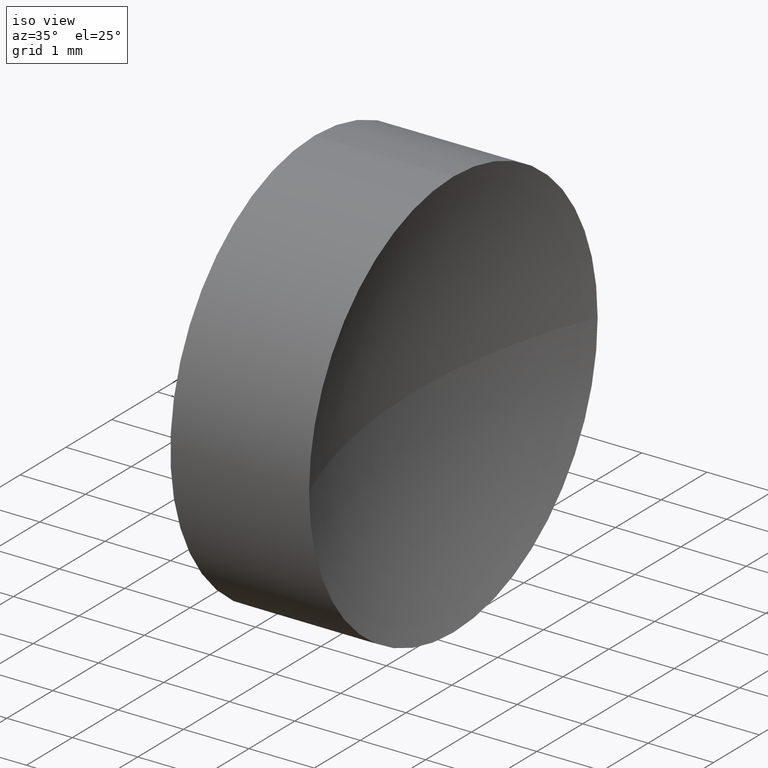
[diagram: clean part render]
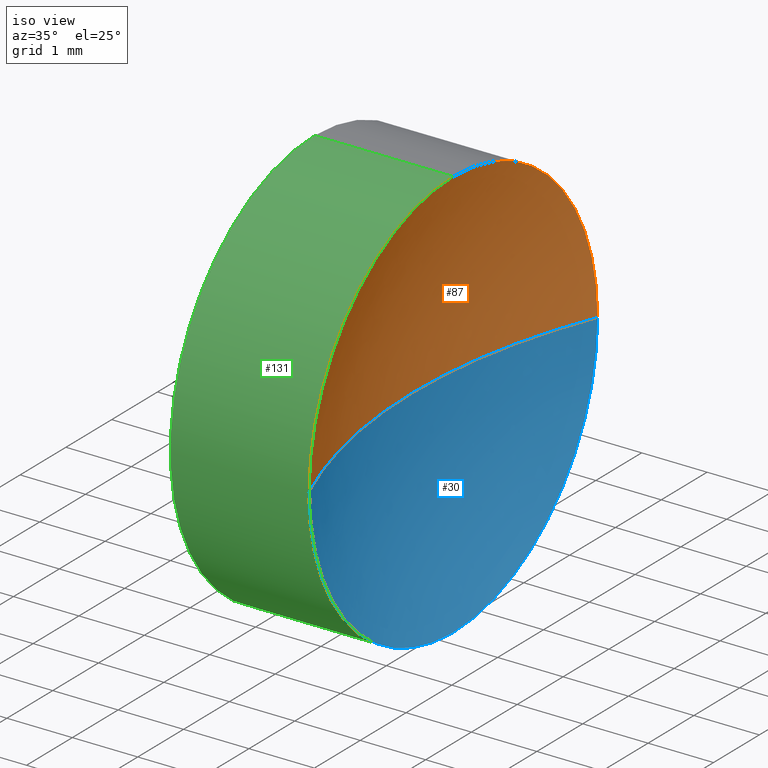
[diagram: same view with three faces highlighted in distinct colors, each labeled with its STEP entity id]
A machine part, iso view with three faces highlighted in distinct colors.
Their STEP definitions:

[orange] entity #87 — the highlighted spherical surface has radius 8.312 mm.
#2 = VERTEX_POINT ( 'NONE', #5 ) ;
#5 = CARTESIAN_POINT ( 'NONE',  ( 23.67218982478000600, 13.04452057459747900, 0.0000000000000000000 ) ) ;
#7 = DIRECTION ( 'NONE',  ( 0.0000000000000000000, -1.000000000000000000, -1.224646799147353200E-016 ) ) ;
#15 = AXIS2_PLACEMENT_3D ( 'NONE', #108, #139, #63 ) ;
#24 = AXIS2_PLACEMENT_3D ( 'NONE', #169, #106, #64 ) ;
#26 = AXIS2_PLACEMENT_3D ( 'NONE', #105, #102, #58 ) ;
#31 = CARTESIAN_POINT ( 'NONE',  ( 24.29218947520227800, 9.894520574597478900, 0.0000000000000000000 ) ) ;
#36 = CARTESIAN_POINT ( 'NONE',  ( 24.29218947520227800, 13.04452057459747900, 3.150000000000001700 ) ) ;
#49 = FACE_OUTER_BOUND ( 'NONE', #80, .T. ) ;
#54 = CIRCLE ( 'NONE', #94, 8.312020466063032100 ) ;
#58 = DIRECTION ( 'NONE',  ( 0.0000000000000000000, -1.000000000000000000, 0.0000000000000000000 ) ) ;
#60 = VERTEX_POINT ( 'NONE', #31 ) ;
#63 = DIRECTION ( 'NONE',  ( 0.0000000000000000000, 0.0000000000000000000, 1.000000000000000000 ) ) ;
#64 = DIRECTION ( 'NONE',  ( -1.000000000000000000, 0.0000000000000000000, 0.0000000000000000000 ) ) ;
#68 = CIRCLE ( 'NONE', #15, 3.150000000000001700 ) ;
#75 = CARTESIAN_POINT ( 'NONE',  ( 24.29218947520227800, 13.04452057459747900, 0.0000000000000000000 ) ) ;
#80 = EDGE_LOOP ( 'NONE', ( #111, #127, #186, #157 ) ) ;
#87 = ADVANCED_FACE ( 'NONE', ( #49 ), #122, .F. ) ;
#91 = CIRCLE ( 'NONE', #184, 3.150000000000001700 ) ;
#94 = AXIS2_PLACEMENT_3D ( 'NONE', #98, #180, #7 ) ;
#98 = CARTESIAN_POINT ( 'NONE',  ( 31.98421029084303800, 13.04452057459747900, 0.0000000000000000000 ) ) ;
#100 = EDGE_CURVE ( 'NONE', #140, #124, #68, .T. ) ;
#102 = DIRECTION ( 'NONE',  ( 0.0000000000000000000, 0.0000000000000000000, 1.000000000000000000 ) ) ;
#105 = CARTESIAN_POINT ( 'NONE',  ( 31.98421029084303800, 13.04452057459747900, 0.0000000000000000000 ) ) ;
#106 = DIRECTION ( 'NONE',  ( 0.0000000000000000000, 0.0000000000000000000, -1.000000000000000000 ) ) ;
#107 = DIRECTION ( 'NONE',  ( 0.0000000000000000000, 0.0000000000000000000, 1.000000000000000000 ) ) ;
#108 = CARTESIAN_POINT ( 'NONE',  ( 24.29218947520227800, 13.04452057459747900, 0.0000000000000000000 ) ) ;
#111 = ORIENTED_EDGE ( 'NONE', *, *, #179, .F. ) ;
#114 = CIRCLE ( 'NONE', #24, 8.312020466063032100 ) ;
#120 = CARTESIAN_POINT ( 'NONE',  ( 24.29218947520227800, 16.19452057459747600, 3.857637417314163200E-016 ) ) ;
#121 = DIRECTION ( 'NONE',  ( -1.000000000000000000, -0.0000000000000000000, -0.0000000000000000000 ) ) ;
#122 = SPHERICAL_SURFACE ( 'NONE', #26, 8.312020466063032100 ) ;
#124 = VERTEX_POINT ( 'NONE', #120 ) ;
#127 = ORIENTED_EDGE ( 'NONE', *, *, #100, .F. ) ;
#129 = EDGE_CURVE ( 'NONE', #60, #140, #91, .T. ) ;
#139 = DIRECTION ( 'NONE',  ( -1.000000000000000000, -0.0000000000000000000, -0.0000000000000000000 ) ) ;
#140 = VERTEX_POINT ( 'NONE', #36 ) ;
#155 = EDGE_CURVE ( 'NONE', #60, #2, #114, .T. ) ;
#157 = ORIENTED_EDGE ( 'NONE', *, *, #155, .T. ) ;
#169 = CARTESIAN_POINT ( 'NONE',  ( 31.98421029084303800, 13.04452057459747900, 0.0000000000000000000 ) ) ;
#179 = EDGE_CURVE ( 'NONE', #124, #2, #54, .T. ) ;
#180 = DIRECTION ( 'NONE',  ( 0.0000000000000000000, -1.224646799147353200E-016, 1.000000000000000000 ) ) ;
#184 = AXIS2_PLACEMENT_3D ( 'NONE', #75, #121, #107 ) ;
#186 = ORIENTED_EDGE ( 'NONE', *, *, #129, .F. ) ;

[blue] entity #30 — the highlighted spherical surface has radius 8.312 mm.
#2 = VERTEX_POINT ( 'NONE', #5 ) ;
#5 = CARTESIAN_POINT ( 'NONE',  ( 23.67218982478000600, 13.04452057459747900, 0.0000000000000000000 ) ) ;
#7 = DIRECTION ( 'NONE',  ( 0.0000000000000000000, -1.000000000000000000, -1.224646799147353200E-016 ) ) ;
#10 = SPHERICAL_SURFACE ( 'NONE', #28, 8.312020466063032100 ) ;
#14 = EDGE_LOOP ( 'NONE', ( #41, #159, #86, #55 ) ) ;
#19 = DIRECTION ( 'NONE',  ( 0.0000000000000000000, -1.000000000000000000, 0.0000000000000000000 ) ) ;
#23 = DIRECTION ( 'NONE',  ( 0.0000000000000000000, 0.0000000000000000000, 1.000000000000000000 ) ) ;
#24 = AXIS2_PLACEMENT_3D ( 'NONE', #169, #106, #64 ) ;
#28 = AXIS2_PLACEMENT_3D ( 'NONE', #103, #85, #19 ) ;
#30 = ADVANCED_FACE ( 'NONE', ( #118 ), #10, .F. ) ;
#31 = CARTESIAN_POINT ( 'NONE',  ( 24.29218947520227800, 9.894520574597478900, 0.0000000000000000000 ) ) ;
#35 = CIRCLE ( 'NONE', #167, 3.150000000000001700 ) ;
#37 = VERTEX_POINT ( 'NONE', #88 ) ;
#39 = CARTESIAN_POINT ( 'NONE',  ( 24.29218947520227800, 13.04452057459747900, 0.0000000000000000000 ) ) ;
#41 = ORIENTED_EDGE ( 'NONE', *, *, #175, .F. ) ;
#54 = CIRCLE ( 'NONE', #94, 8.312020466063032100 ) ;
#55 = ORIENTED_EDGE ( 'NONE', *, *, #116, .F. ) ;
#60 = VERTEX_POINT ( 'NONE', #31 ) ;
#64 = DIRECTION ( 'NONE',  ( -1.000000000000000000, 0.0000000000000000000, 0.0000000000000000000 ) ) ;
#69 = AXIS2_PLACEMENT_3D ( 'NONE', #152, #172, #77 ) ;
#77 = DIRECTION ( 'NONE',  ( 0.0000000000000000000, 0.0000000000000000000, 1.000000000000000000 ) ) ;
#85 = DIRECTION ( 'NONE',  ( 0.0000000000000000000, 0.0000000000000000000, 1.000000000000000000 ) ) ;
#86 = ORIENTED_EDGE ( 'NONE', *, *, #155, .F. ) ;
#88 = CARTESIAN_POINT ( 'NONE',  ( 24.29218947520227800, 13.04452057459747900, -3.150000000000001700 ) ) ;
#93 = DIRECTION ( 'NONE',  ( -1.000000000000000000, -0.0000000000000000000, -0.0000000000000000000 ) ) ;
#94 = AXIS2_PLACEMENT_3D ( 'NONE', #98, #180, #7 ) ;
#98 = CARTESIAN_POINT ( 'NONE',  ( 31.98421029084303800, 13.04452057459747900, 0.0000000000000000000 ) ) ;
#103 = CARTESIAN_POINT ( 'NONE',  ( 31.98421029084303800, 13.04452057459747900, 0.0000000000000000000 ) ) ;
#106 = DIRECTION ( 'NONE',  ( 0.0000000000000000000, 0.0000000000000000000, -1.000000000000000000 ) ) ;
#114 = CIRCLE ( 'NONE', #24, 8.312020466063032100 ) ;
#116 = EDGE_CURVE ( 'NONE', #37, #60, #158, .T. ) ;
#118 = FACE_OUTER_BOUND ( 'NONE', #14, .T. ) ;
#120 = CARTESIAN_POINT ( 'NONE',  ( 24.29218947520227800, 16.19452057459747600, 3.857637417314163200E-016 ) ) ;
#124 = VERTEX_POINT ( 'NONE', #120 ) ;
#152 = CARTESIAN_POINT ( 'NONE',  ( 24.29218947520227800, 13.04452057459747900, 0.0000000000000000000 ) ) ;
#155 = EDGE_CURVE ( 'NONE', #60, #2, #114, .T. ) ;
#158 = CIRCLE ( 'NONE', #69, 3.150000000000001700 ) ;
#159 = ORIENTED_EDGE ( 'NONE', *, *, #179, .T. ) ;
#167 = AXIS2_PLACEMENT_3D ( 'NONE', #39, #93, #23 ) ;
#169 = CARTESIAN_POINT ( 'NONE',  ( 31.98421029084303800, 13.04452057459747900, 0.0000000000000000000 ) ) ;
#172 = DIRECTION ( 'NONE',  ( -1.000000000000000000, -0.0000000000000000000, -0.0000000000000000000 ) ) ;
#175 = EDGE_CURVE ( 'NONE', #124, #37, #35, .T. ) ;
#179 = EDGE_CURVE ( 'NONE', #124, #2, #54, .T. ) ;
#180 = DIRECTION ( 'NONE',  ( 0.0000000000000000000, -1.224646799147353200E-016, 1.000000000000000000 ) ) ;

[green] entity #131 — the highlighted cylindrical surface (partial cylindrical patch) has radius 3.15 mm, axis along (-1, -0, -0).
#1 = VECTOR ( 'NONE', #32, 1000.000000000000000 ) ;
#8 = FACE_OUTER_BOUND ( 'NONE', #66, .T. ) ;
#18 = VERTEX_POINT ( 'NONE', #71 ) ;
#20 = CIRCLE ( 'NONE', #145, 3.150000000000001700 ) ;
#21 = CARTESIAN_POINT ( 'NONE',  ( 22.17218947520228100, 13.04452057459747900, 3.150000000000001700 ) ) ;
#29 = DIRECTION ( 'NONE',  ( 0.0000000000000000000, 0.0000000000000000000, 1.000000000000000000 ) ) ;
#31 = CARTESIAN_POINT ( 'NONE',  ( 24.29218947520227800, 9.894520574597478900, 0.0000000000000000000 ) ) ;
#32 = DIRECTION ( 'NONE',  ( -1.000000000000000000, -0.0000000000000000000, -0.0000000000000000000 ) ) ;
#36 = CARTESIAN_POINT ( 'NONE',  ( 24.29218947520227800, 13.04452057459747900, 3.150000000000001700 ) ) ;
#37 = VERTEX_POINT ( 'NONE', #88 ) ;
#40 = DIRECTION ( 'NONE',  ( -1.000000000000000000, -0.0000000000000000000, -0.0000000000000000000 ) ) ;
#44 = DIRECTION ( 'NONE',  ( -1.000000000000000000, -0.0000000000000000000, -0.0000000000000000000 ) ) ;
#46 = CARTESIAN_POINT ( 'NONE',  ( 21.22493055706841100, 13.04452057459747900, 0.0000000000000000000 ) ) ;
#47 = CARTESIAN_POINT ( 'NONE',  ( 21.22493055706841100, 13.04452057459747900, -3.150000000000001700 ) ) ;
#57 = ORIENTED_EDGE ( 'NONE', *, *, #129, .T. ) ;
#60 = VERTEX_POINT ( 'NONE', #31 ) ;
#62 = ORIENTED_EDGE ( 'NONE', *, *, #67, .F. ) ;
#66 = EDGE_LOOP ( 'NONE', ( #62, #171, #57, #97, #115 ) ) ;
#67 = EDGE_CURVE ( 'NONE', #37, #18, #156, .T. ) ;
#69 = AXIS2_PLACEMENT_3D ( 'NONE', #152, #172, #77 ) ;
#71 = CARTESIAN_POINT ( 'NONE',  ( 22.17218947520228100, 13.04452057459747900, -3.150000000000001700 ) ) ;
#75 = CARTESIAN_POINT ( 'NONE',  ( 24.29218947520227800, 13.04452057459747900, 0.0000000000000000000 ) ) ;
#77 = DIRECTION ( 'NONE',  ( 0.0000000000000000000, 0.0000000000000000000, 1.000000000000000000 ) ) ;
#84 = VERTEX_POINT ( 'NONE', #21 ) ;
#88 = CARTESIAN_POINT ( 'NONE',  ( 24.29218947520227800, 13.04452057459747900, -3.150000000000001700 ) ) ;
#89 = EDGE_CURVE ( 'NONE', #18, #84, #20, .T. ) ;
#91 = CIRCLE ( 'NONE', #184, 3.150000000000001700 ) ;
#97 = ORIENTED_EDGE ( 'NONE', *, *, #143, .T. ) ;
#107 = DIRECTION ( 'NONE',  ( 0.0000000000000000000, 0.0000000000000000000, 1.000000000000000000 ) ) ;
#115 = ORIENTED_EDGE ( 'NONE', *, *, #89, .F. ) ;
#116 = EDGE_CURVE ( 'NONE', #37, #60, #158, .T. ) ;
#121 = DIRECTION ( 'NONE',  ( -1.000000000000000000, -0.0000000000000000000, -0.0000000000000000000 ) ) ;
#126 = AXIS2_PLACEMENT_3D ( 'NONE', #46, #178, #150 ) ;
#128 = CARTESIAN_POINT ( 'NONE',  ( 22.17218947520228100, 13.04452057459747900, 0.0000000000000000000 ) ) ;
#129 = EDGE_CURVE ( 'NONE', #60, #140, #91, .T. ) ;
#131 = ADVANCED_FACE ( 'NONE', ( #8 ), #166, .T. ) ;
#140 = VERTEX_POINT ( 'NONE', #36 ) ;
#141 = VECTOR ( 'NONE', #40, 1000.000000000000000 ) ;
#143 = EDGE_CURVE ( 'NONE', #140, #84, #183, .T. ) ;
#145 = AXIS2_PLACEMENT_3D ( 'NONE', #128, #44, #29 ) ;
#150 = DIRECTION ( 'NONE',  ( 0.0000000000000000000, 0.0000000000000000000, 1.000000000000000000 ) ) ;
#152 = CARTESIAN_POINT ( 'NONE',  ( 24.29218947520227800, 13.04452057459747900, 0.0000000000000000000 ) ) ;
#156 = LINE ( 'NONE', #47, #1 ) ;
#158 = CIRCLE ( 'NONE', #69, 3.150000000000001700 ) ;
#166 = CYLINDRICAL_SURFACE ( 'NONE', #126, 3.150000000000001700 ) ;
#170 = CARTESIAN_POINT ( 'NONE',  ( 21.22493055706841100, 13.04452057459747900, 3.150000000000001700 ) ) ;
#171 = ORIENTED_EDGE ( 'NONE', *, *, #116, .T. ) ;
#172 = DIRECTION ( 'NONE',  ( -1.000000000000000000, -0.0000000000000000000, -0.0000000000000000000 ) ) ;
#178 = DIRECTION ( 'NONE',  ( -1.000000000000000000, -0.0000000000000000000, -0.0000000000000000000 ) ) ;
#183 = LINE ( 'NONE', #170, #141 ) ;
#184 = AXIS2_PLACEMENT_3D ( 'NONE', #75, #121, #107 ) ;